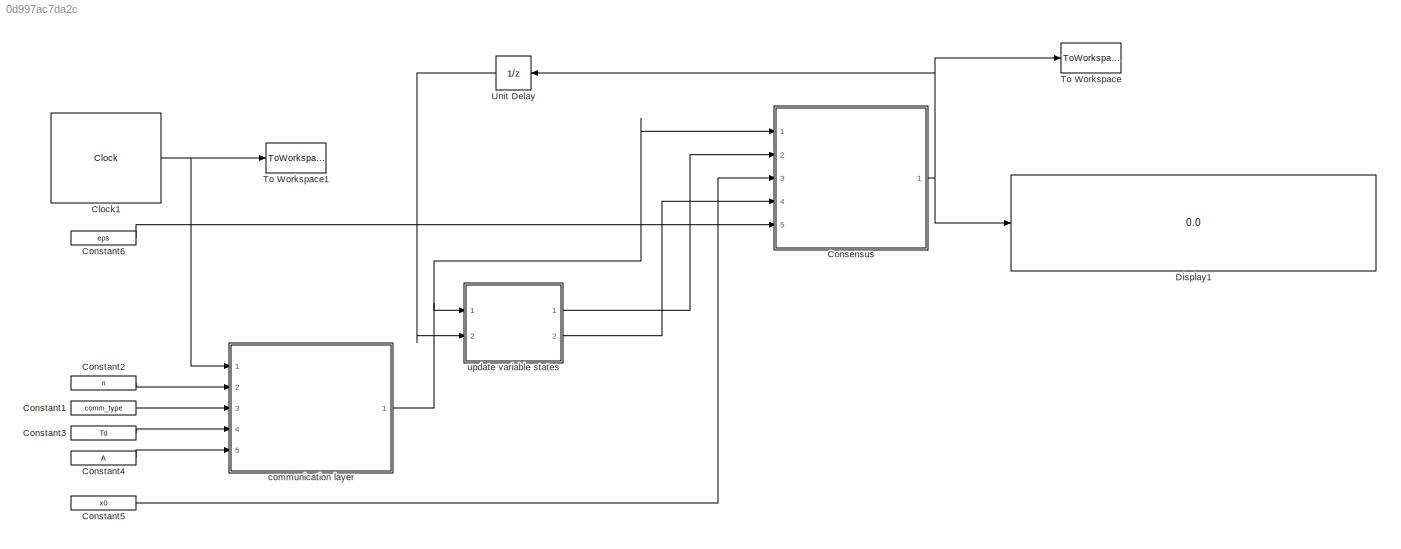
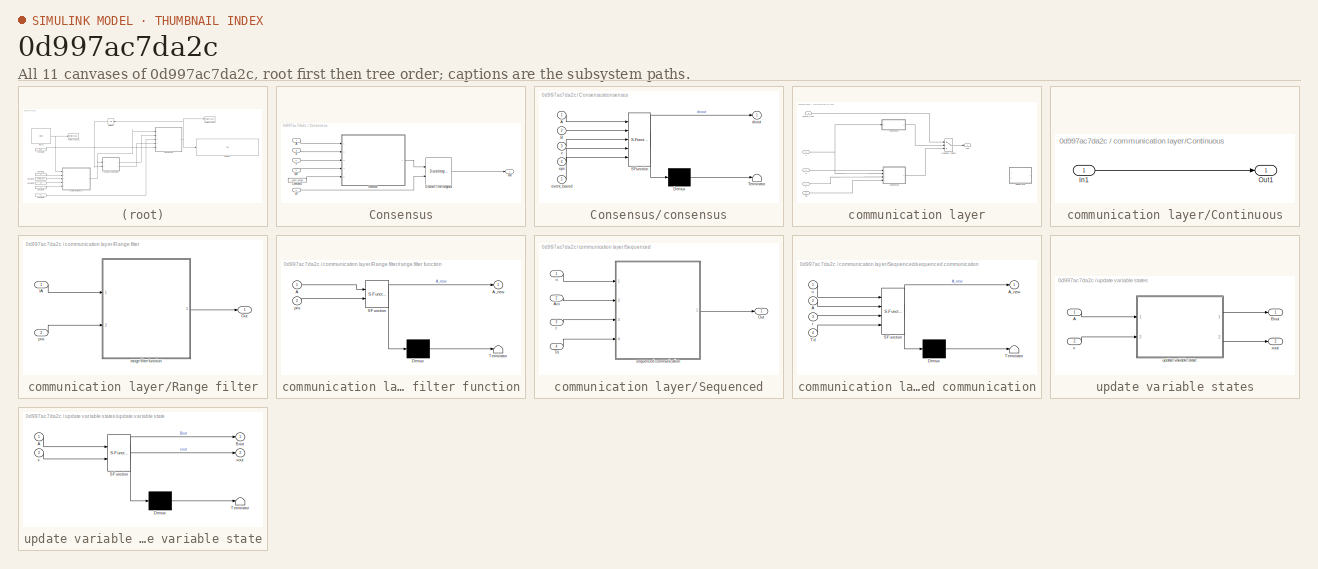
[diagram: thumbnail index - all 11 canvases of the model, root first then tree order]
MODEL slx_0d997ac7da2c
KIND model
CONFIG AbsTol = auto
CONFIG EnableMultiTasking = off
CONFIG FixedStep = auto
CONFIG MaxStep = auto
CONFIG MinStep = auto
CONFIG RelTol = 1e-3
CONFIG SampleTimeConstraint = Unconstrained
CONFIG Solver = VariableStepAuto
CONFIG SolverName = VariableStepAuto
CONFIG StartTime = 0.0
CONFIG StopTime = 1000
BLOCK [Clock] Clock1
  DisplayTime = on
BLOCK [SubSystem] Consensus
  Ports = [5, 1]
  RequestExecContextInheritance = off
  Variant = off
BLOCK [Inport] Consensus/A
  IconDisplay = Port number
BLOCK [Inport] Consensus/B
  IconDisplay = Port number
  Port = 2
BLOCK [Constant] Consensus/Constant2
  OutMax = [1]
  OutMin = [0]
  Value = event_based
BLOCK [DiscreteIntegrator] Consensus/Discrete-Time Integrator
  ICPrevOutput = DiscIntNeverNeededParam
  ICPrevScaledInput = DiscIntNeverNeededParam
  InitialConditionSetting = State (most efficient)
  InitialConditionSource = external
  IntegratorMethod = Accumulation: Trapezoidal
  Ports = [2, 1]
  RndMeth = Nearest
  SampleTime = 0.05
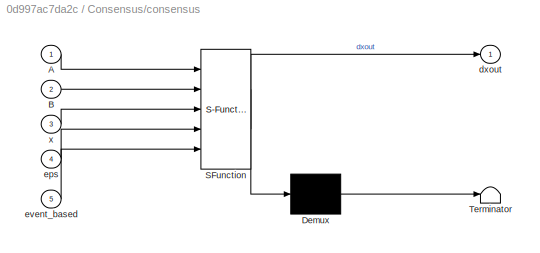
BLOCK [SubSystem] Consensus/consensus
  ErrorFcn = Stateflow.Translate.translate
  PermitHierarchicalResolution = ExplicitOnly
  Ports = [5, 1]
  RequestExecContextInheritance = off
  SFBlockType = MATLAB Function
  TreatAsAtomicUnit = on
  Variant = off
BLOCK [Demux] Consensus/consensus/ Demux 
  Outputs = 1
  Ports = [1, 1]
BLOCK [S-Function] Consensus/consensus/ SFunction 
  EnableBusSupport = on
  FunctionName = sf_sfun
  PortCounts = [5 2]
  Ports = [5, 2]
  SFcnIsStateOwnerBlock = off
  SFunctionDeploymentMode = off
  Tag = Stateflow S-Function basic_consensus_average 3
BLOCK [Terminator] Consensus/consensus/ Terminator 
BLOCK [Inport] Consensus/consensus/A
  IconDisplay = Port number
BLOCK [Inport] Consensus/consensus/B
  IconDisplay = Port number
  Port = 2
BLOCK [Outport] Consensus/consensus/dxout
  IconDisplay = Port number
BLOCK [Inport] Consensus/consensus/eps
  IconDisplay = Port number
  Port = 4
BLOCK [Inport] Consensus/consensus/event_based
  IconDisplay = Port number
  Port = 5
BLOCK [Inport] Consensus/consensus/x
  IconDisplay = Port number
  Port = 3
BLOCK [Inport] Consensus/eps
  IconDisplay = Port number
  Port = 5
BLOCK [Inport] Consensus/x
  IconDisplay = Port number
  Port = 4
BLOCK [Inport] Consensus/x0
  IconDisplay = Port number
  Port = 3
BLOCK [Outport] Consensus/xout
  IconDisplay = Port number
BLOCK [Constant] Constant1
  OutMax = [2]
  OutMin = [1]
  Value = comm_type
BLOCK [Constant] Constant2
  OutMax = 200
  OutMin = [1]
  Value = n
BLOCK [Constant] Constant3
  OutMin = [1]
  Value = Td
BLOCK [Constant] Constant4
  OutMax = [1]
  OutMin = [0]
  Value = A
BLOCK [Constant] Constant5
  Value = x0
BLOCK [Constant] Constant6
  OutMax = [1]
  OutMin = [0]
  Value = eps
BLOCK [Display] Display1
  Decimation = 1
  Ports = [1]
BLOCK [ToWorkspace] To Workspace
  FixptAsFi = on
  MaxDataPoints = inf
  Ports = [1]
  SampleTime = -1
  Save2DSignal = 3-D array (concatenate along third dimension)
  SaveFormat = Timeseries
  VariableName = x
BLOCK [ToWorkspace] To Workspace1
  MaxDataPoints = inf
  Ports = [1]
  SampleTime = -1
  VariableName = t
BLOCK [UnitDelay] Unit Delay
  InitialCondition = -1
  InputProcessing = Elements as channels (sample based)
  SampleTime = -1
BLOCK [SubSystem] communication layer
  Ports = [5, 1]
  RequestExecContextInheritance = off
  Variant = off
BLOCK [Inport] communication layer/A
  IconDisplay = Port number
  Port = 5
BLOCK [Outport] communication layer/Aout
  IconDisplay = Port number
  VarSizeSig = No
BLOCK [SubSystem] communication layer/Continuous
  Ports = [1, 1]
  RequestExecContextInheritance = off
  Variant = off
BLOCK [Inport] communication layer/Continuous/In1
  IconDisplay = Port number
BLOCK [Outport] communication layer/Continuous/Out1
  IconDisplay = Port number
BLOCK [MultiPortSwitch] communication layer/Multiport Switch
  DiagnosticForDefault = Warning
  InputSameDT = off
  Inputs = 2
  OutDataTypeStr = Inherit: Inherit via back propagation
  Ports = [3, 1]
  SaturateOnIntegerOverflow = off
BLOCK [SubSystem] communication layer/Range filter
  Commented = on
  Ports = [2, 1]
  RequestExecContextInheritance = off
  Variant = off
BLOCK [Inport] communication layer/Range filter/IA
  IconDisplay = Port number
BLOCK [Outport] communication layer/Range filter/Out
  IconDisplay = Port number
BLOCK [Inport] communication layer/Range filter/pos
  IconDisplay = Port number
  Port = 2
BLOCK [SubSystem] communication layer/Range filter/range filter function
  ErrorFcn = Stateflow.Translate.translate
  PermitHierarchicalResolution = ExplicitOnly
  Ports = [2, 1]
  RequestExecContextInheritance = off
  SFBlockType = MATLAB Function
  TreatAsAtomicUnit = on
  Variant = off
BLOCK [Demux] communication layer/Range filter/range filter function/ Demux 
  Outputs = 1
  Ports = [1, 1]
BLOCK [S-Function] communication layer/Range filter/range filter function/ SFunction 
  EnableBusSupport = on
  FunctionName = sf_sfun
  PortCounts = [2 2]
  Ports = [2, 2]
  SFcnIsStateOwnerBlock = off
  SFunctionDeploymentMode = off
  Tag = Stateflow S-Function basic_consensus_average 2
BLOCK [Terminator] communication layer/Range filter/range filter function/ Terminator 
BLOCK [Inport] communication layer/Range filter/range filter function/A
  IconDisplay = Port number
BLOCK [Outport] communication layer/Range filter/range filter function/A_new
  IconDisplay = Port number
BLOCK [Inport] communication layer/Range filter/range filter function/pos
  IconDisplay = Port number
  Port = 2
BLOCK [SubSystem] communication layer/Sequenced
  Ports = [4, 1]
  RequestExecContextInheritance = off
  Variant = off
BLOCK [Inport] communication layer/Sequenced/Ain
  IconDisplay = Port number
  Port = 2
BLOCK [Outport] communication layer/Sequenced/Out
  IconDisplay = Port number
BLOCK [Inport] communication layer/Sequenced/Td
  IconDisplay = Port number
  Port = 4
BLOCK [Inport] communication layer/Sequenced/n
  IconDisplay = Port number
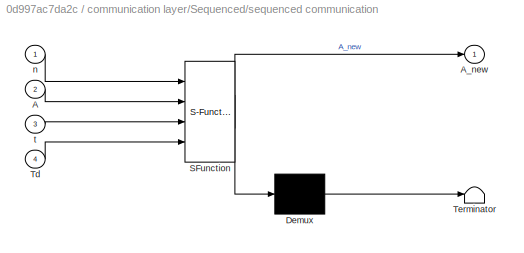
BLOCK [SubSystem] communication layer/Sequenced/sequenced communication
  ErrorFcn = Stateflow.Translate.translate
  PermitHierarchicalResolution = ExplicitOnly
  Ports = [4, 1]
  RequestExecContextInheritance = off
  SFBlockType = MATLAB Function
  TreatAsAtomicUnit = on
  Variant = off
BLOCK [Demux] communication layer/Sequenced/sequenced communication/ Demux 
  Outputs = 1
  Ports = [1, 1]
BLOCK [S-Function] communication layer/Sequenced/sequenced communication/ SFunction 
  EnableBusSupport = on
  FunctionName = sf_sfun
  PortCounts = [4 2]
  Ports = [4, 2]
  SFcnIsStateOwnerBlock = off
  SFunctionDeploymentMode = off
  Tag = Stateflow S-Function basic_consensus_average 1
BLOCK [Terminator] communication layer/Sequenced/sequenced communication/ Terminator 
BLOCK [Inport] communication layer/Sequenced/sequenced communication/A
  IconDisplay = Port number
  Port = 2
BLOCK [Outport] communication layer/Sequenced/sequenced communication/A_new
  IconDisplay = Port number
BLOCK [Inport] communication layer/Sequenced/sequenced communication/Td
  IconDisplay = Port number
  Port = 4
BLOCK [Inport] communication layer/Sequenced/sequenced communication/n
  IconDisplay = Port number
BLOCK [Inport] communication layer/Sequenced/sequenced communication/t
  IconDisplay = Port number
  Port = 3
BLOCK [Inport] communication layer/Sequenced/t
  IconDisplay = Port number
  Port = 3
BLOCK [Inport] communication layer/Td
  IconDisplay = Port number
  Port = 4
BLOCK [Inport] communication layer/comm_type
  IconDisplay = Port number
  Port = 3
BLOCK [Inport] communication layer/n
  IconDisplay = Port number
  Port = 2
BLOCK [Inport] communication layer/t
  IconDisplay = Port number
BLOCK [SubSystem] update variable states
  Ports = [2, 2]
  RequestExecContextInheritance = off
  Variant = off
BLOCK [Inport] update variable states/A
  IconDisplay = Port number
BLOCK [Outport] update variable states/Bout
  IconDisplay = Port number
  VarSizeSig = No
BLOCK [SubSystem] update variable states/update variable state
  ErrorFcn = Stateflow.Translate.translate
  PermitHierarchicalResolution = ExplicitOnly
  Ports = [2, 2]
  RequestExecContextInheritance = off
  SFBlockType = MATLAB Function
  TreatAsAtomicUnit = on
  Variant = off
BLOCK [Demux] update variable states/update variable state/ Demux 
  Outputs = 1
  Ports = [1, 1]
BLOCK [S-Function] update variable states/update variable state/ SFunction 
  EnableBusSupport = on
  FunctionName = sf_sfun
  PortCounts = [2 3]
  Ports = [2, 3]
  SFcnIsStateOwnerBlock = off
  SFunctionDeploymentMode = off
  Tag = Stateflow S-Function basic_consensus_average 4
BLOCK [Terminator] update variable states/update variable state/ Terminator 
BLOCK [Inport] update variable states/update variable state/A
  IconDisplay = Port number
BLOCK [Outport] update variable states/update variable state/Bout
  IconDisplay = Port number
BLOCK [Inport] update variable states/update variable state/x
  IconDisplay = Port number
  Port = 2
BLOCK [Outport] update variable states/update variable state/xout
  IconDisplay = Port number
  Port = 2
BLOCK [Inport] update variable states/x
  IconDisplay = Port number
  Port = 2
BLOCK [Outport] update variable states/xout
  IconDisplay = Port number
  Port = 2
  VarSizeSig = No
NET Clock1:1 -> To Workspace1:1, communication layer:1
LINE Consensus/A:1 -> Consensus/consensus:1
LINE Consensus/B:1 -> Consensus/consensus:2
LINE Consensus/Constant2:1 -> Consensus/consensus:5
LINE Consensus/Discrete-Time Integrator:1 -> Consensus/xout:1
LINE Consensus/consensus:1 -> Consensus/Discrete-Time Integrator:1
LINE Consensus/eps:1 -> Consensus/consensus:4
LINE Consensus/x0:1 -> Consensus/Discrete-Time Integrator:2
LINE Consensus/x:1 -> Consensus/consensus:3
NET Consensus:1 -> Display1:1, To Workspace:1, Unit Delay:1
LINE Constant1:1 -> communication layer:3
LINE Constant2:1 -> communication layer:2
LINE Constant3:1 -> communication layer:4
LINE Constant4:1 -> communication layer:5
LINE Constant5:1 -> Consensus:3
LINE Constant6:1 -> Consensus:5
LINE Unit Delay:1 -> update variable states:2
NET communication layer/A:1 -> communication layer/Continuous:1, communication layer/Sequenced:2
LINE communication layer/Continuous/In1:1 -> communication layer/Continuous/Out1:1
LINE communication layer/Continuous:1 -> communication layer/Multiport Switch:2
LINE communication layer/Multiport Switch:1 -> communication layer/Aout:1
LINE communication layer/Range filter/IA:1 -> communication layer/Range filter/range filter function:1
LINE communication layer/Range filter/pos:1 -> communication layer/Range filter/range filter function:2
LINE communication layer/Range filter/range filter function:1 -> communication layer/Range filter/Out:1
LINE communication layer/Sequenced/Ain:1 -> communication layer/Sequenced/sequenced communication:2
LINE communication layer/Sequenced/Td:1 -> communication layer/Sequenced/sequenced communication:4
LINE communication layer/Sequenced/n:1 -> communication layer/Sequenced/sequenced communication:1
LINE communication layer/Sequenced/sequenced communication:1 -> communication layer/Sequenced/Out:1
LINE communication layer/Sequenced/t:1 -> communication layer/Sequenced/sequenced communication:3
LINE communication layer/Sequenced:1 -> communication layer/Multiport Switch:3
LINE communication layer/Td:1 -> communication layer/Sequenced:4
LINE communication layer/comm_type:1 -> communication layer/Multiport Switch:1
LINE communication layer/n:1 -> communication layer/Sequenced:1
LINE communication layer/t:1 -> communication layer/Sequenced:3
NET communication layer:1 -> Consensus:1, update variable states:1
LINE update variable states/A:1 -> update variable states/update variable state:1
LINE update variable states/update variable state:1 -> update variable states/Bout:1
LINE update variable states/update variable state:2 -> update variable states/xout:1
LINE update variable states/x:1 -> update variable states/update variable state:2
LINE update variable states:1 -> Consensus:2
LINE update variable states:2 -> Consensus:4
note: NET lines group one-source signal fan-out (src -> all destinations, sorted); 1:1 wires keep LINE
CHART communication layer/Sequenced/sequenced 
communication states=1 transitions=1
  STATE_LABEL 'eML_blk_kernel()'
  STATE_LABEL 'SCRIPT:\nfunction A_new = sequenced_comms_filter_A(n,A,t,Td)\n  \n persistent lastComm;\n    c = floor(mod(t,(n*Td))/Td) + 1;\n    calc = true;\n    comm  = zeros(1,n);\n    \n    if isempty(lastComm)\n        lastComm = c;\n        calc = true;\n    else\n        if lastComm == c\n            calc = false;\n        else\n            lastComm = c;\n            calc = true;\n        end\n    end\n    \n    if calc\n   ...<+87ch>'
CHART communication layer/Range filter/range filter function states=1 transitions=1
  STATE_LABEL 'eML_blk_kernel()'
  STATE_LABEL 'SCRIPT:\nfunction A_new = range_filter_A(A,pos)\n    A_new = A;\n  end  '
CHART Consensus/consensus states=1 transitions=1
  STATE_LABEL 'eML_blk_kernel()'
  STATE_LABEL 'SCRIPT:\nfunction dxout = consensus(A, B, x, eps, event_based)\n    dxout=zeros(size(B,1),1);\n    calc=1;\n    if event_based\n        if isempty(find(A,1))\n            calc=0;\n        end\n    end\n    \n    % if calculating one by one\n    j = find(~all(A==0))\n    \n    if calc\n        for i=1:size(x,1)\n            if ~isempty(j)\n                % if calculating one by one -> uncomment otherwise\n        ...<+373ch>'
CHART update variable states/update variable state states=1 transitions=1
  STATE_LABEL 'eML_blk_kernel()'
  STATE_LABEL 'SCRIPT:\nfunction [Bout,xout] = update_var_states(A,x)\n    persistent xcomm;\n    if isempty(xcomm)\n        xcomm = zeros(size(A));\n    end\n    \n    persistent B;\n    if isempty(B)\n        B = zeros(size(A));\n    end    \n    if length(find(~all(B==0))) == size(x,1)\n        %reset\n        B = zeros(size(A));\n    end\n    \n    % because fo the delay of the signal\n    if max(x)==-1\n        xout = zeros(...<+678ch>'
